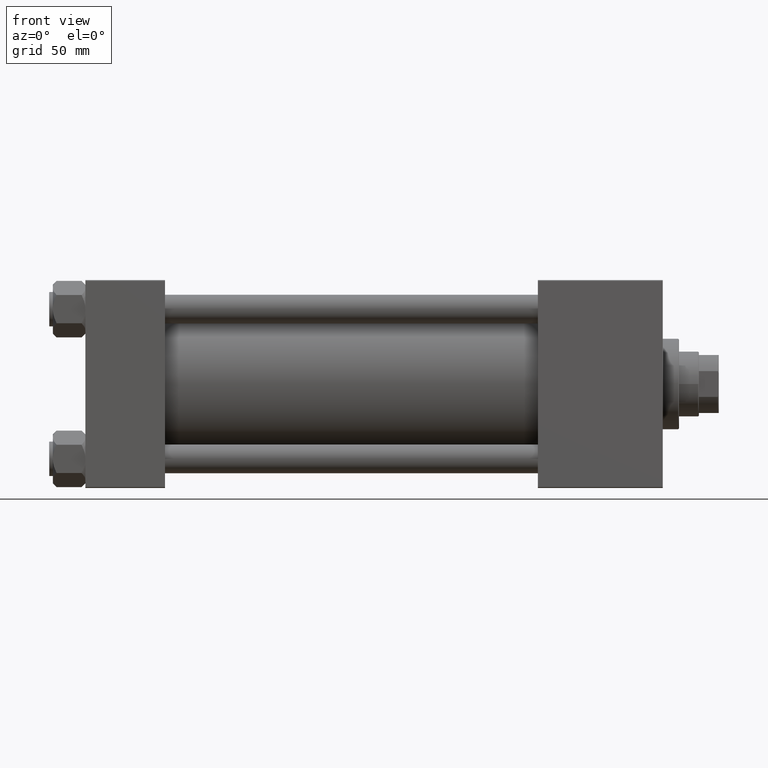
[diagram: clean part render]
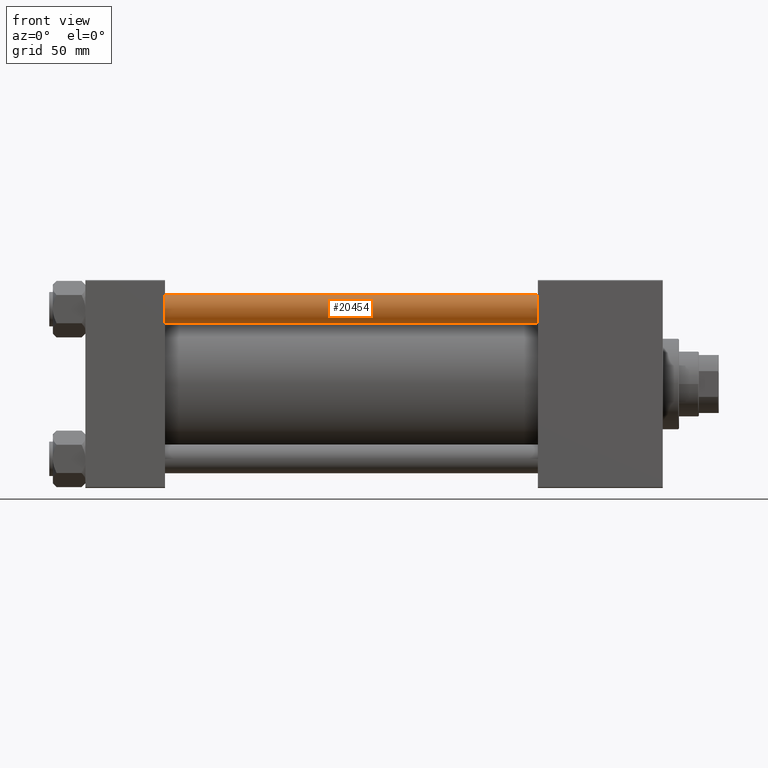
[diagram: same view with one face highlighted and labeled with its STEP entity id]
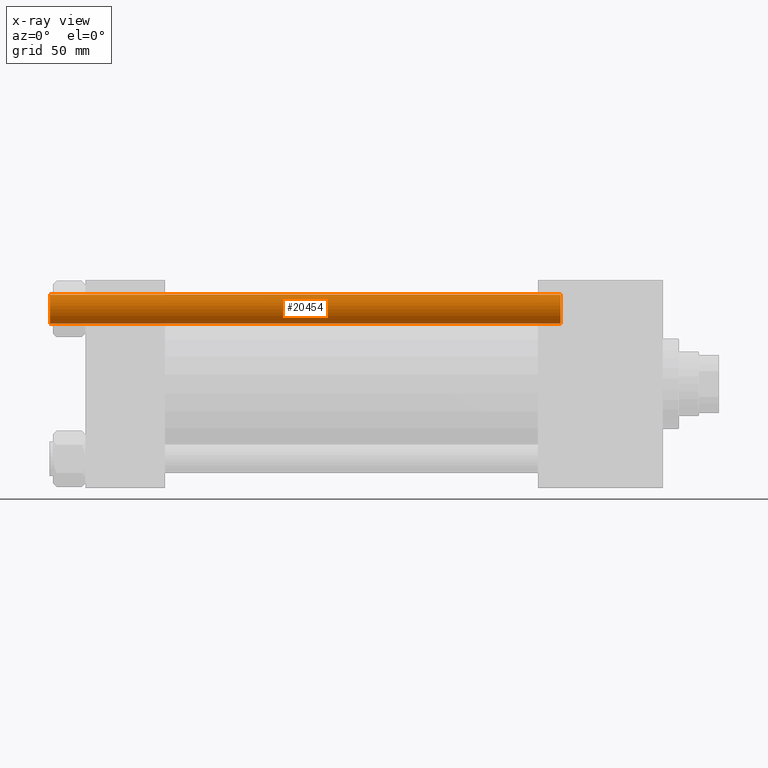
[diagram: x-ray of the same camera — body ghosted, the highlighted face saturated]
A machine part, front view. The second image highlights one B-rep face of the part: STEP entity #20454.
The next image is the same camera in x-ray: the body ghosted, the highlighted face saturated — about 0% of this face is hidden behind the body in this view.
In plain terms, the highlighted cylindrical surface (edge-blend (fillet) strip) has radius 8 mm, axis along (1, 0, -0).
Its self-contained STEP definition (entity closure, byte-faithful):
#7566 = DIRECTION ( 'NONE',  ( 0.000000000000000000, 0.000000000000000000, -1.000000000000000000 ) ) ;
#7635 = CARTESIAN_POINT ( 'NONE',  ( -8.000000000000000000, 0.000000000000000000, 282.5000000000000000 ) ) ;
#8513 = CIRCLE ( 'NONE', #31461, 8.000000000000000000 ) ;
#10092 = CARTESIAN_POINT ( 'NONE',  ( 0.000000000000000000, 0.000000000000000000, 283.0000000000000000 ) ) ;
#10676 = DIRECTION ( 'NONE',  ( 1.000000000000000000, 0.000000000000000000, 0.000000000000000000 ) ) ;
#11925 = AXIS2_PLACEMENT_3D ( 'NONE', #10092, #41416, #45523 ) ;
#12844 = DIRECTION ( 'NONE',  ( -0.000000000000000000, -0.000000000000000000, -1.000000000000000000 ) ) ;
#13628 = DIRECTION ( 'NONE',  ( -0.000000000000000000, -0.000000000000000000, 1.000000000000000000 ) ) ;
#13879 = CARTESIAN_POINT ( 'NONE',  ( 0.000000000000000000, 0.000000000000000000, 0.5000000000000004441 ) ) ;
#14149 = VERTEX_POINT ( 'NONE', #50044 ) ;
#14514 = VERTEX_POINT ( 'NONE', #38398 ) ;
#15968 = EDGE_CURVE ( 'NONE', #29762, #14149, #8513, .T. ) ;
#16683 = CARTESIAN_POINT ( 'NONE',  ( -8.000000000000000000, 0.000000000000000000, 283.0000000000000000 ) ) ;
#17832 = ORIENTED_EDGE ( 'NONE', *, *, #47880, .T. ) ;
#18906 = EDGE_CURVE ( 'NONE', #29762, #14514, #36223, .T. ) ;
#20140 = DIRECTION ( 'NONE',  ( -0.000000000000000000, -0.000000000000000000, -1.000000000000000000 ) ) ;
#20454 = ADVANCED_FACE ( 'NONE', ( #41670 ), #45281, .T. ) ;
#23120 = ORIENTED_EDGE ( 'NONE', *, *, #18906, .F. ) ;
#24251 = LINE ( 'NONE', #35551, #35892 ) ;
#25828 = EDGE_LOOP ( 'NONE', ( #30827, #38609, #17832, #23120 ) ) ;
#26892 = EDGE_CURVE ( 'NONE', #14149, #49924, #24251, .T. ) ;
#29762 = VERTEX_POINT ( 'NONE', #7635 ) ;
#30827 = ORIENTED_EDGE ( 'NONE', *, *, #15968, .T. ) ;
#30938 = CARTESIAN_POINT ( 'NONE',  ( 0.000000000000000000, 0.000000000000000000, 282.5000000000000000 ) ) ;
#30990 = CIRCLE ( 'NONE', #38392, 8.000000000000000000 ) ;
#31461 = AXIS2_PLACEMENT_3D ( 'NONE', #30938, #7566, #10676 ) ;
#35551 = CARTESIAN_POINT ( 'NONE',  ( 8.000000000000000000, 9.797174393178825657E-16, 283.0000000000000000 ) ) ;
#35638 = VECTOR ( 'NONE', #12844, 1000.000000000000000 ) ;
#35892 = VECTOR ( 'NONE', #20140, 1000.000000000000000 ) ;
#36223 = LINE ( 'NONE', #16683, #35638 ) ;
#38392 = AXIS2_PLACEMENT_3D ( 'NONE', #13879, #13628, #45228 ) ;
#38398 = CARTESIAN_POINT ( 'NONE',  ( -8.000000000000000000, 0.000000000000000000, 0.5000000000000004441 ) ) ;
#38609 = ORIENTED_EDGE ( 'NONE', *, *, #26892, .T. ) ;
#40417 = CARTESIAN_POINT ( 'NONE',  ( 8.000000000000000000, 9.797174393178825657E-16, 0.5000000000000004441 ) ) ;
#41416 = DIRECTION ( 'NONE',  ( -0.000000000000000000, -0.000000000000000000, -1.000000000000000000 ) ) ;
#41670 = FACE_OUTER_BOUND ( 'NONE', #25828, .T. ) ;
#45228 = DIRECTION ( 'NONE',  ( 1.000000000000000000, 0.000000000000000000, 0.000000000000000000 ) ) ;
#45281 = CYLINDRICAL_SURFACE ( 'NONE', #11925, 8.000000000000000000 ) ;
#45523 = DIRECTION ( 'NONE',  ( -1.000000000000000000, 0.000000000000000000, 0.000000000000000000 ) ) ;
#47880 = EDGE_CURVE ( 'NONE', #49924, #14514, #30990, .T. ) ;
#49924 = VERTEX_POINT ( 'NONE', #40417 ) ;
#50044 = CARTESIAN_POINT ( 'NONE',  ( 8.000000000000000000, 9.797174393178825657E-16, 282.5000000000000000 ) ) ;